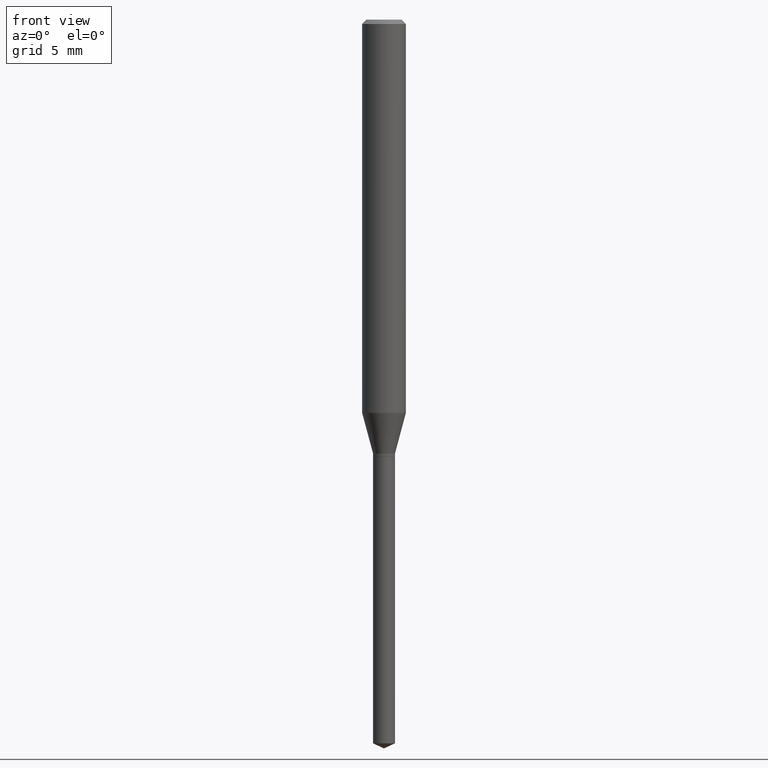
[diagram: clean part render]
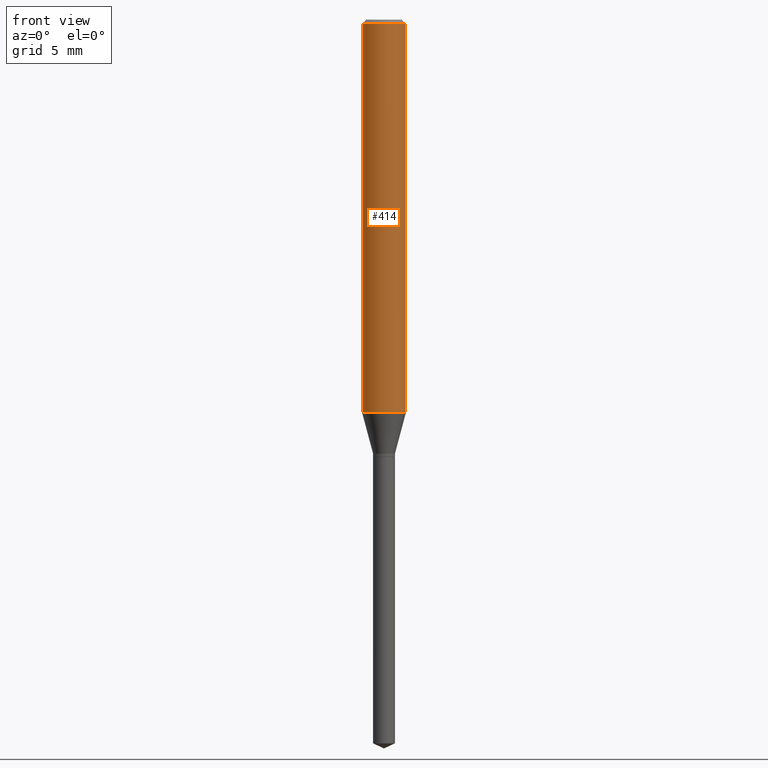
[diagram: same view with one face highlighted and labeled with its STEP entity id]
A machine part, front view. The second image highlights one B-rep face of the part: STEP entity #414.
In plain terms, the highlighted cylindrical surface (edge-blend (fillet) strip) has radius 1.4999 mm, axis along (-0, 0, 1).
Its self-contained STEP definition (entity closure, byte-faithful):
#12 = VERTEX_POINT ( 'NONE', #38 ) ;
#15 = CARTESIAN_POINT ( 'NONE',  ( 2.888098660104662452E-31, -4.123439461173777798E-17, -0.01181000000000006697 ) ) ;
#30 = ORIENTED_EDGE ( 'NONE', *, *, #408, .F. ) ;
#38 = CARTESIAN_POINT ( 'NONE',  ( 0.05904999999999999832, -4.535783407291118600E-16, -0.01181000000000006697 ) ) ;
#53 = DIRECTION ( 'NONE',  ( -2.445468806185136597E-29, 3.491481338843145583E-15, 1.000000000000000000 ) ) ;
#72 = CARTESIAN_POINT ( 'NONE',  ( -0.05905000000000006771, 4.195754854663396409E-16, -2.904631170795525045E-30 ) ) ;
#73 = CARTESIAN_POINT ( 'NONE',  ( 0.05905000000000006771, -4.123439461173745257E-16, 2.879382386107503723E-30 ) ) ;
#75 = VECTOR ( 'NONE', #232, 39.37007874015748143 ) ;
#119 = CIRCLE ( 'NONE', #485, 0.05905000000000013710 ) ;
#124 = EDGE_CURVE ( 'NONE', #385, #409, #424, .T. ) ;
#138 = DIRECTION ( 'NONE',  ( 1.000000000000000000, -6.982962677686266711E-15, 0.000000000000000000 ) ) ;
#173 = CARTESIAN_POINT ( 'NONE',  ( -0.05904999999999999832, -1.455200734719437602E-15, -0.01181000000000006697 ) ) ;
#193 = EDGE_CURVE ( 'NONE', #361, #12, #393, .T. ) ;
#196 = DIRECTION ( 'NONE',  ( -2.445468806185136877E-29, 3.491481338843145188E-15, 1.000000000000000000 ) ) ;
#197 = DIRECTION ( 'NONE',  ( -2.445468806185136597E-29, 3.491481338843145583E-15, 1.000000000000000000 ) ) ;
#212 = DIRECTION ( 'NONE',  ( 1.000000000000000000, -6.982962677686266711E-15, 4.876176775795936353E-29 ) ) ;
#232 = DIRECTION ( 'NONE',  ( -2.445468806185136877E-29, 3.491481338843145188E-15, 1.000000000000000000 ) ) ;
#249 = ORIENTED_EDGE ( 'NONE', *, *, #124, .F. ) ;
#278 = VECTOR ( 'NONE', #196, 39.37007874015748143 ) ;
#280 = EDGE_LOOP ( 'NONE', ( #249, #297, #366, #30 ) ) ;
#294 = CYLINDRICAL_SURFACE ( 'NONE', #356, 0.05905000000000006771 ) ;
#296 = CIRCLE ( 'NONE', #318, 0.05904999999999999832 ) ;
#297 = ORIENTED_EDGE ( 'NONE', *, *, #314, .T. ) ;
#312 = CARTESIAN_POINT ( 'NONE',  ( 2.597343426536488625E-29, -3.708318045759818038E-15, -1.062104501176717841 ) ) ;
#314 = EDGE_CURVE ( 'NONE', #385, #361, #119, .T. ) ;
#318 = AXIS2_PLACEMENT_3D ( 'NONE', #15, #329, #138 ) ;
#329 = DIRECTION ( 'NONE',  ( -2.445468806185136597E-29, 3.491481338843145583E-15, 1.000000000000000000 ) ) ;
#337 = CARTESIAN_POINT ( 'NONE',  ( 0.05905000000000013710, -4.120661991877192958E-15, -1.062104501176717841 ) ) ;
#353 = DIRECTION ( 'NONE',  ( 1.000000000000000000, -6.982962677686264344E-15, 0.000000000000000000 ) ) ;
#356 = AXIS2_PLACEMENT_3D ( 'NONE', #442, #53, #212 ) ;
#361 = VERTEX_POINT ( 'NONE', #337 ) ;
#366 = ORIENTED_EDGE ( 'NONE', *, *, #193, .T. ) ;
#378 = CARTESIAN_POINT ( 'NONE',  ( -0.05905000000000013710, -3.288742560293478151E-15, -1.062104501176717841 ) ) ;
#385 = VERTEX_POINT ( 'NONE', #378 ) ;
#393 = LINE ( 'NONE', #73, #278 ) ;
#408 = EDGE_CURVE ( 'NONE', #409, #12, #296, .T. ) ;
#409 = VERTEX_POINT ( 'NONE', #173 ) ;
#414 = ADVANCED_FACE ( 'NONE', ( #475 ), #294, .T. ) ;
#424 = LINE ( 'NONE', #72, #75 ) ;
#442 = CARTESIAN_POINT ( 'NONE',  ( 0.000000000000000000, 0.000000000000000000, 0.000000000000000000 ) ) ;
#475 = FACE_OUTER_BOUND ( 'NONE', #280, .T. ) ;
#485 = AXIS2_PLACEMENT_3D ( 'NONE', #312, #197, #353 ) ;